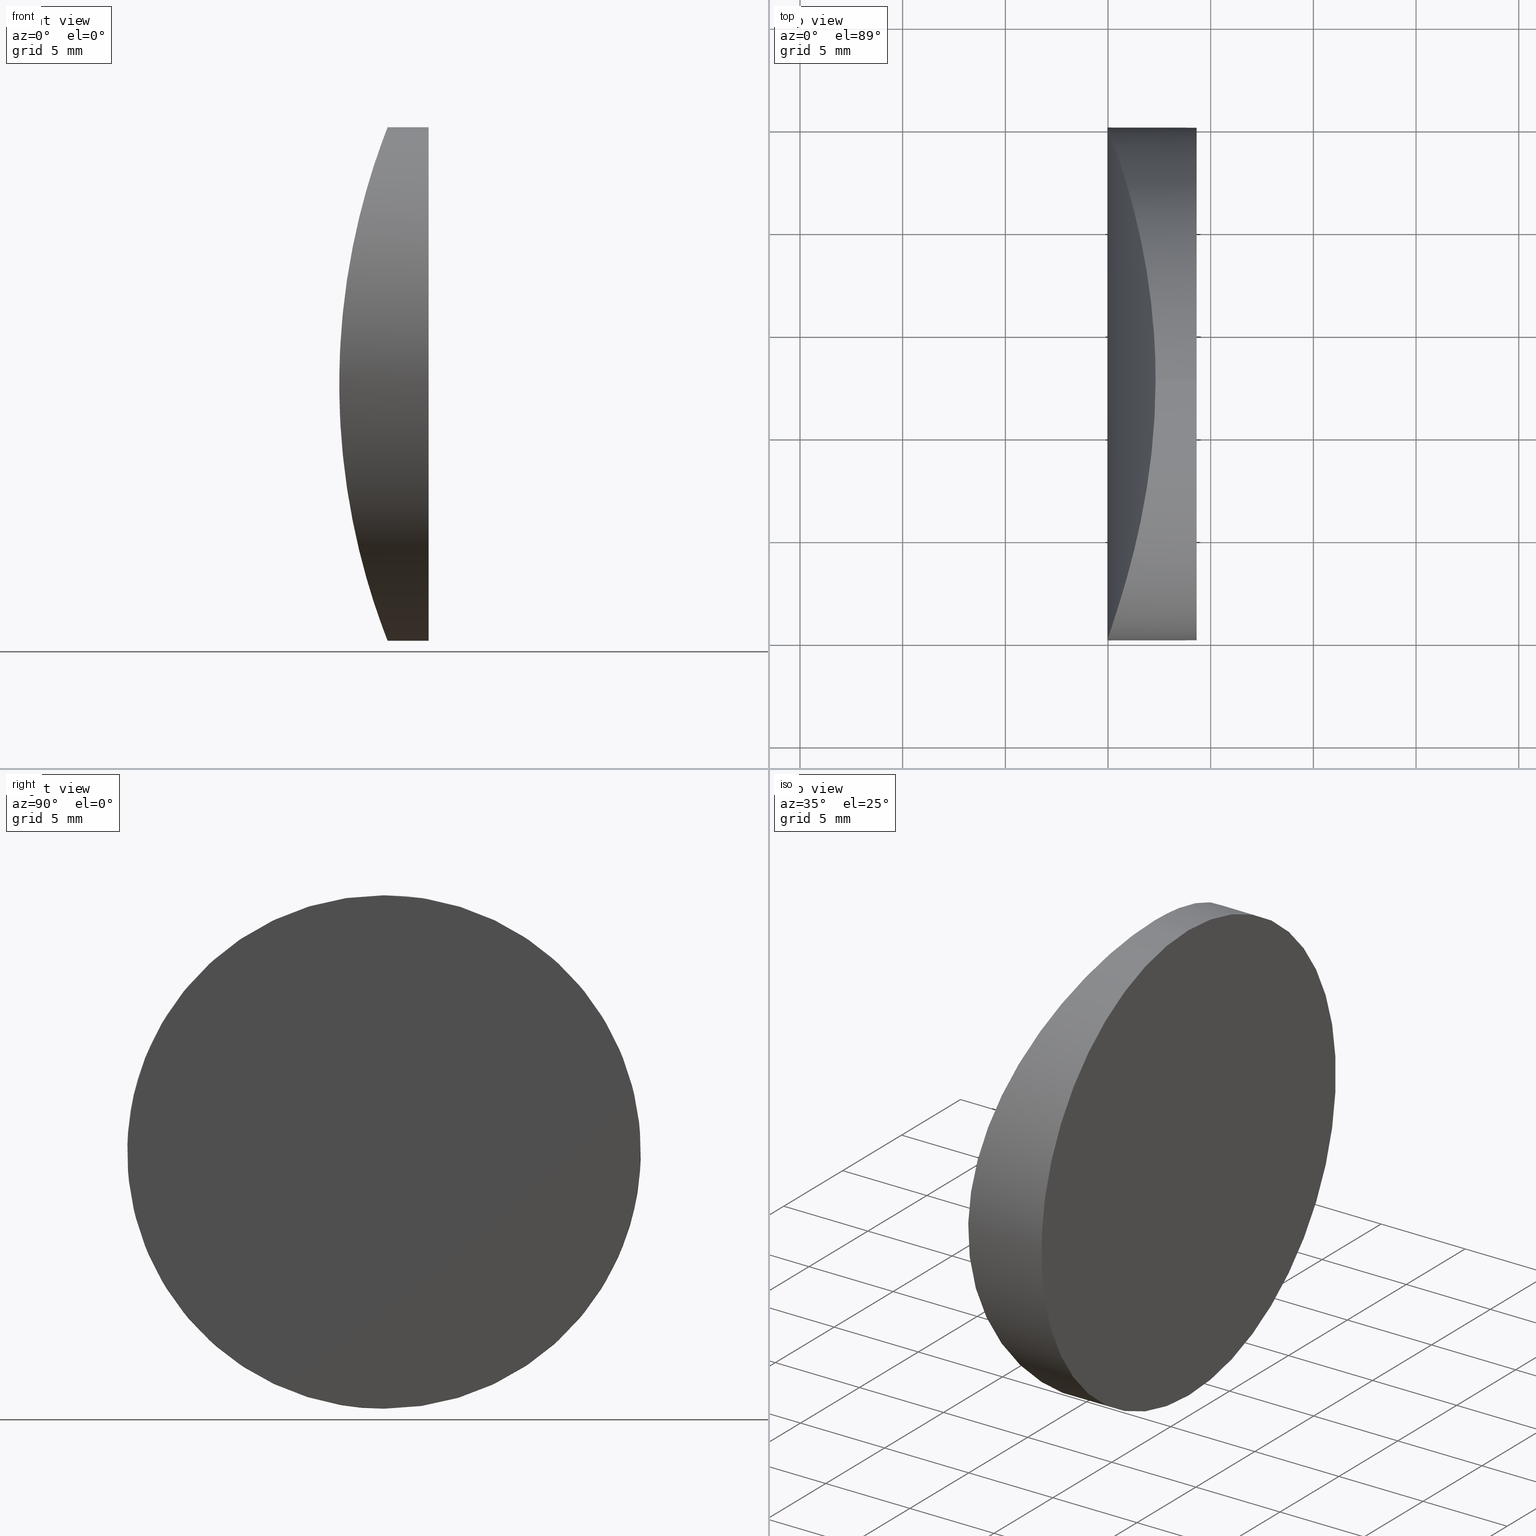
[diagram: canonical four-view strip — front | top / right | iso, engineering-drawing reading convention]
A machine part, canonical four-view strip (front | top / right | iso — engineering-drawing reading convention). The complete STEP part file that produces these views, byte-faithful:
ISO-10303-21;
HEADER;
FILE_DESCRIPTION (( 'STEP AP214' ),
    '1' );
FILE_NAME ('155291.STEP',
    '2019-06-26T05:49:38',
    ( 'user' ),
    ( '΢���й�' ),
    'SwSTEP 2.0',
    'SolidWorks 2016',
    '' );
FILE_SCHEMA (( 'AUTOMOTIVE_DESIGN' ));
ENDSEC;

DATA;
#1 = CARTESIAN_POINT ( 'NONE',  ( -27.68261862489430000, 12.50000000000000200, 12.50000000000001200 ) ) ;
#2 = CARTESIAN_POINT ( 'NONE',  ( -28.80275623099902300, 21.05008927480712400, -9.127373024748370900 ) ) ;
#3 =( GEOMETRIC_REPRESENTATION_CONTEXT ( 3 ) GLOBAL_UNCERTAINTY_ASSIGNED_CONTEXT ( ( #26 ) ) GLOBAL_UNIT_ASSIGNED_CONTEXT ( ( #47, #167, #173 ) ) REPRESENTATION_CONTEXT ( 'NONE', 'WORKASPACE' ) );
#4 = CARTESIAN_POINT ( 'NONE',  ( -27.93417209600296000, 16.54167172307995800, -11.83573902449227700 ) ) ;
#5 = AXIS2_PLACEMENT_3D ( 'NONE', #135, #40, #79 ) ;
#6 = FILL_AREA_STYLE_COLOUR ( '', #44 ) ;
#7 = EDGE_LOOP ( 'NONE', ( #151, #102, #87, #164 ) ) ;
#8 = CARTESIAN_POINT ( 'NONE',  ( -38.38479566514874400, 12.50000000000000200, 12.50000000000001600 ) ) ;
#9 = CARTESIAN_POINT ( 'NONE',  ( -30.00456624396605700, 0.08247634580604582000, 1.654664864097329200 ) ) ;
#10 = CARTESIAN_POINT ( 'NONE',  ( -28.80275360441916600, 3.949920913334837600, 9.127382542189256000 ) ) ;
#11 = AXIS2_PLACEMENT_3D ( 'NONE', #138, #18, #146 ) ;
#12 = CARTESIAN_POINT ( 'NONE',  ( -27.93417136693381400, 8.458334154526179200, 11.83574100932794200 ) ) ;
#13 = ORIENTED_EDGE ( 'NONE', *, *, #216, .T. ) ;
#14 = FACE_OUTER_BOUND ( 'NONE', #172, .T. ) ;
#15 = CARTESIAN_POINT ( 'NONE',  ( -27.80831729185340300, 9.630672460026927300, -12.17323180414692500 ) ) ;
#16 = DIRECTION ( 'NONE',  ( -2.775557561562890900E-016, 0.0000000000000000000, -1.000000000000000000 ) ) ;
#17 = DIRECTION ( 'NONE',  ( 1.000000000000000000, -0.0000000000000000000, -2.775557561562888400E-016 ) ) ;
#18 = DIRECTION ( 'NONE',  ( -0.0000000000000000000, -1.000000000000000000, -0.0000000000000000000 ) ) ;
#19 = CARTESIAN_POINT ( 'NONE',  ( -30.00459348050529900, 24.91757540255821000, 1.650794525485969300 ) ) ;
#20 = EDGE_CURVE ( 'NONE', #161, #36, #171, .T. ) ;
#21 = VERTEX_POINT ( 'NONE', #1 ) ;
#22 = CARTESIAN_POINT ( 'NONE',  ( -28.28518884856265800, 18.77773512722421500, -10.83985291728540700 ) ) ;
#23 = CARTESIAN_POINT ( 'NONE',  ( -29.25386027604025000, 22.65842477849977100, 7.295353636701395100 ) ) ;
#24 = CARTESIAN_POINT ( 'NONE',  ( -29.46281449669463000, 1.663707027548613200, 6.284672555825289400 ) ) ;
#25 = CARTESIAN_POINT ( 'NONE',  ( -29.74862158569902300, 24.19061978359414400, -4.443503981567981300 ) ) ;
#26 = UNCERTAINTY_MEASURE_WITH_UNIT (LENGTH_MEASURE( 1.000000000000000100E-005 ), #47, 'distance_accuracy_value', 'NONE');
#27 = CLOSED_SHELL ( 'NONE', ( #107, #118, #145, #110 ) ) ;
#28 = CARTESIAN_POINT ( 'NONE',  ( -29.03114223898581200, 3.103868318050590600, -8.253988237868890500 ) ) ;
#29 = CARTESIAN_POINT ( 'NONE',  ( -27.84499578560834400, 9.246668262674711900, 12.07624364830674000 ) ) ;
#30 = SHAPE_DEFINITION_REPRESENTATION ( #52, #32 ) ;
#31 = ORIENTED_EDGE ( 'NONE', *, *, #98, .F. ) ;
#32 = ADVANCED_BREP_SHAPE_REPRESENTATION ( '155291', ( #121, #5 ), #139 ) ;
#33 = CARTESIAN_POINT ( 'NONE',  ( -25.68479566514874100, 12.50000000000000000, -12.49999999999999800 ) ) ;
#34 = CARTESIAN_POINT ( 'NONE',  ( -29.75006470198216100, 24.19483706776008700, 4.432622641739887300 ) ) ;
#35 = ORIENTED_EDGE ( 'NONE', *, *, #60, .T. ) ;
#36 = VERTEX_POINT ( 'NONE', #147 ) ;
#37 = CARTESIAN_POINT ( 'NONE',  ( -29.88091643244263200, 24.57073443577632300, -3.273586096115768100 ) ) ;
#38 = CARTESIAN_POINT ( 'NONE',  ( -25.68479566514873700, 12.50000000000000000, 7.128962882560135300E-015 ) ) ;
#39 =( NAMED_UNIT ( * ) SI_UNIT ( $, .STERADIAN. ) SOLID_ANGLE_UNIT ( ) );
#40 = DIRECTION ( 'NONE',  ( 0.0000000000000000000, 0.0000000000000000000, 1.000000000000000000 ) ) ;
#41 = APPLICATION_CONTEXT ( 'automotive_design' ) ;
#42 = CARTESIAN_POINT ( 'NONE',  ( -29.03050791899421100, 3.093258085831388700, 8.271339939754817300 ) ) ;
#43 = CARTESIAN_POINT ( 'NONE',  ( -28.28518723345344900, 6.222273334738162000, 10.83985772180482200 ) ) ;
#44 = COLOUR_RGB ( '',1.000000000000000000, 1.000000000000000000, 1.000000000000000000 ) ;
#45 = PRODUCT ( '155291', '155291', '', ( #148 ) ) ;
#46 = ORIENTED_EDGE ( 'NONE', *, *, #160, .F. ) ;
#47 =( LENGTH_UNIT ( ) NAMED_UNIT ( * ) SI_UNIT ( .MILLI., .METRE. ) );
#48 = DIRECTION ( 'NONE',  ( -2.775557561562890400E-016, 0.0000000000000000000, -1.000000000000000000 ) ) ;
#49 =( GEOMETRIC_REPRESENTATION_CONTEXT ( 3 ) GLOBAL_UNCERTAINTY_ASSIGNED_CONTEXT ( ( #97 ) ) GLOBAL_UNIT_ASSIGNED_CONTEXT ( ( #153, #133, #39 ) ) REPRESENTATION_CONTEXT ( 'NONE', 'WORKASPACE' ) );
#50 = CARTESIAN_POINT ( 'NONE',  ( -29.18030689710218400, 2.586894198857435000, -7.625348896330256000 ) ) ;
#51 = CARTESIAN_POINT ( 'NONE',  ( -29.03113929885849100, 21.89612123517792600, 8.254000096522585000 ) ) ;
#52 = PRODUCT_DEFINITION_SHAPE ( 'NONE', 'NONE',  #224 ) ;
#53 = PRODUCT_RELATED_PRODUCT_CATEGORY ( 'part', '', ( #45 ) ) ;
#54 = CARTESIAN_POINT ( 'NONE',  ( -29.59004818840314500, 23.72255856452423100, 5.565393909500506300 ) ) ;
#55 = CARTESIAN_POINT ( 'NONE',  ( -29.88091413361193800, 0.4292720795931539400, 3.273610026519647500 ) ) ;
#56 = CARTESIAN_POINT ( 'NONE',  ( -28.15417720882170400, 6.933359156929364000, -11.22152700402516400 ) ) ;
#57 = FILL_AREA_STYLE ('',( #6 ) ) ;
#58 = CARTESIAN_POINT ( 'NONE',  ( -27.84499626010628900, 15.75333649954086300, -12.07624238717444600 ) ) ;
#59 = CARTESIAN_POINT ( 'NONE',  ( -27.68261862489430000, 12.50000000000000200, 12.50000000000001200 ) ) ;
#60 = EDGE_CURVE ( 'NONE', #21, #36, #61, .T. ) ;
#61 = LINE ( 'NONE', #8, #124 ) ;
#62 = DIRECTION ( 'NONE',  ( 1.000000000000000000, -2.465190328815661300E-032, -2.510324564891254900E-016 ) ) ;
#63 = CARTESIAN_POINT ( 'NONE',  ( -29.91725283075606600, 24.67312654712153700, -2.869789699021069000 ) ) ;
#64 = CARTESIAN_POINT ( 'NONE',  ( -29.59005126638303600, 1.277432145709698000, -5.565375384383452600 ) ) ;
#65 = CARTESIAN_POINT ( 'NONE',  ( -28.15417591719125300, 18.06663318251941100, 11.22153071805902900 ) ) ;
#66 = CARTESIAN_POINT ( 'NONE',  ( -38.38479566514874400, 12.50000000000000000, -12.49999999999999500 ) ) ;
#67 = CARTESIAN_POINT ( 'NONE',  ( -27.93628897816292400, 8.441590494950627700, -11.82996471325024700 ) ) ;
#68 = DIRECTION ( 'NONE',  ( 1.000000000000000000, -2.465190328815661300E-032, -2.510324564891254900E-016 ) ) ;
#69 = FACE_OUTER_BOUND ( 'NONE', #111, .T. ) ;
#70 = CARTESIAN_POINT ( 'NONE',  ( -29.88280629605897300, 24.57609142824464100, 3.253925222309598900 ) ) ;
#71 = DIRECTION ( 'NONE',  ( -2.775557561562890400E-016, 0.0000000000000000000, -1.000000000000000000 ) ) ;
#72 = CYLINDRICAL_SURFACE ( 'NONE', #74, 12.50000000000000500 ) ;
#73 = CARTESIAN_POINT ( 'NONE',  ( -28.95537211803211600, 3.375957713350600500, -8.553645965190963100 ) ) ;
#74 = AXIS2_PLACEMENT_3D ( 'NONE', #81, #17, #180 ) ;
#75 = PRESENTATION_LAYER_ASSIGNMENT (  '', '', ( #181 ) ) ;
#76 = CARTESIAN_POINT ( 'NONE',  ( -29.46349294341856200, 1.661731452363045300, -6.280529546352103600 ) ) ;
#77 = SURFACE_STYLE_USAGE ( .BOTH. , #219 ) ;
#78 = CARTESIAN_POINT ( 'NONE',  ( -29.74861882287756700, 0.8093882711108719700, 4.443525113256235700 ) ) ;
#79 = DIRECTION ( 'NONE',  ( 1.000000000000000000, 0.0000000000000000000, 0.0000000000000000000 ) ) ;
#80 = CARTESIAN_POINT ( 'NONE',  ( -28.15346121212862200, 6.936902819512595500, 11.22364447733905400 ) ) ;
#81 = CARTESIAN_POINT ( 'NONE',  ( -38.38479566514874400, 12.50000000000000000, 1.065392098574500300E-014 ) ) ;
#82 = CARTESIAN_POINT ( 'NONE',  ( -27.98696864466325400, 8.057987109682365200, -11.69117449731651300 ) ) ;
#83 = CARTESIAN_POINT ( 'NONE',  ( -28.72759336298537400, 4.232450204764711000, -9.410082261536354400 ) ) ;
#84 = CARTESIAN_POINT ( 'NONE',  ( -27.98696778596361800, 16.94200660137109100, 11.69117686610902700 ) ) ;
#85 = CARTESIAN_POINT ( 'NONE',  ( -28.57490508175847300, 20.14279043702545400, 9.925178605276515900 ) ) ;
#86 = CARTESIAN_POINT ( 'NONE',  ( -29.58934629421969800, 23.72040157173630700, -5.569009140239433700 ) ) ;
#87 = ORIENTED_EDGE ( 'NONE', *, *, #160, .T. ) ;
#88 = CARTESIAN_POINT ( 'NONE',  ( -30.00459480313940800, 0.08242095384357188400, -1.650767714123980500 ) ) ;
#89 = PRESENTATION_STYLE_ASSIGNMENT (( #162 ) ) ;
#90 = MECHANICAL_DESIGN_GEOMETRIC_PRESENTATION_REPRESENTATION (  '', ( #94 ), #49 ) ;
#91 = CARTESIAN_POINT ( 'NONE',  ( -29.91725074705607300, 0.3268793150756996200, 2.869814483377699100 ) ) ;
#92 = CARTESIAN_POINT ( 'NONE',  ( -28.72649411179952100, 4.249564700920617000, 9.399239376524576500 ) ) ;
#93 = VECTOR ( 'NONE', #205, 1000.000000000000000 ) ;
#94 = STYLED_ITEM ( 'NONE', ( #143 ), #32 ) ;
#95 = CARTESIAN_POINT ( 'NONE',  ( -29.79663257316942500, 24.32956587615740300, -4.059601819066883400 ) ) ;
#96 = CARTESIAN_POINT ( 'NONE',  ( -27.68261862489430000, 12.50000000000000200, 12.50000000000001200 ) ) ;
#97 = UNCERTAINTY_MEASURE_WITH_UNIT (LENGTH_MEASURE( 1.000000000000000100E-005 ), #153, 'distance_accuracy_value', 'NONE');
#98 = EDGE_CURVE ( 'NONE', #21, #142, #154, .T. ) ;
#99 = CARTESIAN_POINT ( 'NONE',  ( -30.03479940413747300, -1.028670582729603600E-005, -0.8329356729202913600 ) ) ;
#100 = CARTESIAN_POINT ( 'NONE',  ( -29.18116831342736000, 22.42245623404778600, -7.646385978183769100 ) ) ;
#101 = DIRECTION ( 'NONE',  ( 1.000000000000000000, 0.0000000000000000000, -2.775557561562890900E-016 ) ) ;
#102 = ORIENTED_EDGE ( 'NONE', *, *, #98, .T. ) ;
#103 = CARTESIAN_POINT ( 'NONE',  ( -28.28587312272549100, 18.78172564395517000, 10.83795824613669900 ) ) ;
#104 = APPLICATION_CONTEXT ( 'automotive_design' ) ;
#105 = PRESENTATION_LAYER_ASSIGNMENT (  '', '', ( #94 ) ) ;
#106 = CARTESIAN_POINT ( 'NONE',  ( -27.80712544602119600, 9.644539751483302200, 12.17637246660203200 ) ) ;
#107 = ADVANCED_FACE ( 'NONE', ( #207 ), #185, .T. ) ;
#108 = CARTESIAN_POINT ( 'NONE',  ( -27.98546607127927600, 8.068739912112521400, 11.69534075740456400 ) ) ;
#109 = DIRECTION ( 'NONE',  ( 1.000000000000000000, -0.0000000000000000000, -2.775557561562888400E-016 ) ) ;
#110 = ADVANCED_FACE ( 'NONE', ( #129 ), #72, .T. ) ;
#111 = EDGE_LOOP ( 'NONE', ( #183, #31 ) ) ;
#112 = SURFACE_STYLE_FILL_AREA ( #57 ) ;
#113 = DIRECTION ( 'NONE',  ( 0.0000000000000000000, 0.0000000000000000000, -1.000000000000000000 ) ) ;
#114 = CARTESIAN_POINT ( 'NONE',  ( -29.79865622830953600, 24.33540466519128700, 4.042673613696070600 ) ) ;
#115 = CARTESIAN_POINT ( 'NONE',  ( -27.80712581113589400, 15.35546444158051000, -12.17637150400243600 ) ) ;
#116 = CARTESIAN_POINT ( 'NONE',  ( -28.28587474115270000, 6.218265877492669300, -10.83795343299489400 ) ) ;
#117 = AXIS2_PLACEMENT_3D ( 'NONE', #188, #128, #113 ) ;
#118 = ADVANCED_FACE ( 'NONE', ( #69 ), #178, .T. ) ;
#119 = CARTESIAN_POINT ( 'NONE',  ( -29.46348978808604400, 23.33825871744276300, 6.280546364263013700 ) ) ;
#120 = CIRCLE ( 'NONE', #150, 12.50000000000000500 ) ;
#121 = MANIFOLD_SOLID_BREP ( '�г�-����8', #27 ) ;
#122 = CARTESIAN_POINT ( 'NONE',  ( -28.72649661931204100, 20.75044535852663700, -9.399230570610534100 ) ) ;
#123 = COLOUR_RGB ( '',1.000000000000000000, 1.000000000000000000, 1.000000000000000000 ) ;
#124 = VECTOR ( 'NONE', #109, 1000.000000000000000 ) ;
#125 = CARTESIAN_POINT ( 'NONE',  ( -29.88280856626463200, 0.4239021406810782300, -3.253901421624838100 ) ) ;
#126 = CARTESIAN_POINT ( 'NONE',  ( -29.91837780333349500, 0.3237125640030355000, -2.855844906392303300 ) ) ;
#127 = CARTESIAN_POINT ( 'NONE',  ( -28.57539988421563800, 4.877952719775036500, 9.915633047845229700 ) ) ;
#128 = DIRECTION ( 'NONE',  ( 1.000000000000000000, -0.0000000000000000000, -2.775557561562888400E-016 ) ) ;
#129 = FACE_OUTER_BOUND ( 'NONE', #7, .T. ) ;
#130 = CARTESIAN_POINT ( 'NONE',  ( -27.71512721602632100, 14.15083397525024200, -12.41754999621956300 ) ) ;
#131 = CARTESIAN_POINT ( 'NONE',  ( -27.71512711847934400, 10.84916847754178400, 12.41755024107369800 ) ) ;
#132 = CARTESIAN_POINT ( 'NONE',  ( -29.46281766168499400, 23.33630283217453500, -6.284655692507367800 ) ) ;
#133 =( NAMED_UNIT ( * ) PLANE_ANGLE_UNIT ( ) SI_UNIT ( $, .RADIAN. ) );
#134 = CARTESIAN_POINT ( 'NONE',  ( -29.79662994263382500, 0.6704417132909157300, 4.059623858878035600 ) ) ;
#135 = CARTESIAN_POINT ( 'NONE',  ( 0.0000000000000000000, 0.0000000000000000000, 0.0000000000000000000 ) ) ;
#136 = CARTESIAN_POINT ( 'NONE',  ( -29.18030379751040800, 22.41309531547570100, 7.625362491439354100 ) ) ;
#137 = APPLICATION_PROTOCOL_DEFINITION ( 'draft international standard', 'automotive_design', 1998, #104 ) ;
#138 = CARTESIAN_POINT ( 'NONE',  ( 4.355204334851265500, 25.00000000000000000, 4.286263797015675000E-017 ) ) ;
#139 =( GEOMETRIC_REPRESENTATION_CONTEXT ( 3 ) GLOBAL_UNCERTAINTY_ASSIGNED_CONTEXT ( ( #157 ) ) GLOBAL_UNIT_ASSIGNED_CONTEXT ( ( #193, #199, #221 ) ) REPRESENTATION_CONTEXT ( 'NONE', 'WORKASPACE' ) );
#140 = CARTESIAN_POINT ( 'NONE',  ( -29.25386341390898400, 2.341564844001974500, -7.295339217932771600 ) ) ;
#141 = AXIS2_PLACEMENT_3D ( 'NONE', #222, #101, #16 ) ;
#142 = VERTEX_POINT ( 'NONE', #149 ) ;
#143 = PRESENTATION_STYLE_ASSIGNMENT (( #77 ) ) ;
#144 = MECHANICAL_DESIGN_GEOMETRIC_PRESENTATION_REPRESENTATION (  '', ( #181 ), #3 ) ;
#145 = ADVANCED_FACE ( 'NONE', ( #14 ), #159, .T. ) ;
#146 = DIRECTION ( 'NONE',  ( 0.0000000000000000000, 0.0000000000000000000, -1.000000000000000000 ) ) ;
#147 = CARTESIAN_POINT ( 'NONE',  ( -25.68479566514873400, 12.50000000000000200, 12.50000000000001200 ) ) ;
#148 = PRODUCT_CONTEXT ( 'NONE', #41, 'mechanical' ) ;
#149 = CARTESIAN_POINT ( 'NONE',  ( -27.68261862489430300, 12.50000000000000000, -12.49999999999999800 ) ) ;
#150 = AXIS2_PLACEMENT_3D ( 'NONE', #189, #62, #48 ) ;
#151 = ORIENTED_EDGE ( 'NONE', *, *, #60, .F. ) ;
#152 = CARTESIAN_POINT ( 'NONE',  ( -30.03479265193081500, 24.99999171003484500, -0.8332159410108661600 ) ) ;
#153 =( LENGTH_UNIT ( ) NAMED_UNIT ( * ) SI_UNIT ( .MILLI., .METRE. ) );
#154 = B_SPLINE_CURVE_WITH_KNOTS ( 'NONE', 3,
 ( #96, #179, #131, #106, #29, #12, #108, #80, #43, #200, #127, #92, #10, #42, #202, #24, #211, #78, #134, #55, #91, #9, #168, #99, #88, #126, #125, #213, #165, #64, #76, #140, #50, #28, #73, #83, #184, #116, #56, #82, #67, #191, #15, #170, #190, #176 ),
 .UNSPECIFIED., .F., .F.,
 ( 4, 2, 2, 2, 2, 2, 2, 2, 2, 2, 2, 2, 2, 2, 2, 2, 2, 2, 2, 2, 2, 2, 4 ),
 ( 0.01969840129271694900, 0.02216071677144734700, 0.02339187451081254500, 0.02462303225017774300, 0.02708534772890813800, 0.02831650546827333600, 0.02954766320763853700, 0.03200997868636894200, 0.03447229416509934400, 0.03570345190446454200, 0.03693460964382974700, 0.03939692512256014900, 0.04185924060129055100, 0.04309039834065574900, 0.04432155608002094600, 0.04678387155875134800, 0.04801502929811654600, 0.04924618703748175100, 0.05170850251621214600, 0.05417081799494255500, 0.05540197573430776000, 0.05663313347367295000, 0.05909544895240335900 ),
 .UNSPECIFIED. ) ;
#155 = CARTESIAN_POINT ( 'NONE',  ( -28.15346250653735200, 18.06310485941780900, -11.22364075600437200 ) ) ;
#156 = CARTESIAN_POINT ( 'NONE',  ( -27.84699994362514300, 15.77293558321610900, 12.07090075405611200 ) ) ;
#157 = UNCERTAINTY_MEASURE_WITH_UNIT (LENGTH_MEASURE( 1.000000000000000100E-005 ), #193, 'distance_accuracy_value', 'NONE');
#158 = CARTESIAN_POINT ( 'NONE',  ( -27.71514577670293300, 14.15448565710782500, 12.41753306807851800 ) ) ;
#159 = PLANE ( 'NONE',  #141 ) ;
#160 = EDGE_CURVE ( 'NONE', #142, #161, #166, .T. ) ;
#161 = VERTEX_POINT ( 'NONE', #33 ) ;
#162 = SURFACE_STYLE_USAGE ( .BOTH. , #175 ) ;
#163 = PRODUCT_DEFINITION_FORMATION_WITH_SPECIFIED_SOURCE ( '�κ�', '', #45, .NOT_KNOWN. ) ;
#164 = ORIENTED_EDGE ( 'NONE', *, *, #216, .F. ) ;
#165 = CARTESIAN_POINT ( 'NONE',  ( -29.75006748239969300, 0.8051548286722500800, -4.432601326758915100 ) ) ;
#166 = LINE ( 'NONE', #66, #93 ) ;
#167 =( NAMED_UNIT ( * ) PLANE_ANGLE_UNIT ( ) SI_UNIT ( $, .RADIAN. ) );
#168 = CARTESIAN_POINT ( 'NONE',  ( -30.03479192546715400, 1.028861197471729100E-005, 0.8332443928213482100 ) ) ;
#169 = FILL_AREA_STYLE_COLOUR ( '', #123 ) ;
#170 = CARTESIAN_POINT ( 'NONE',  ( -27.71514587435705600, 10.84551187920120600, -12.41753282317805200 ) ) ;
#171 = CIRCLE ( 'NONE', #204, 12.50000000000000500 ) ;
#172 = EDGE_LOOP ( 'NONE', ( #223, #13 ) ) ;
#173 =( NAMED_UNIT ( * ) SI_UNIT ( $, .STERADIAN. ) SOLID_ANGLE_UNIT ( ) );
#174 = FILL_AREA_STYLE ('',( #169 ) ) ;
#175 = SURFACE_SIDE_STYLE ('',( #212 ) ) ;
#176 = CARTESIAN_POINT ( 'NONE',  ( -27.68261862489430300, 12.50000000000000000, -12.49999999999999800 ) ) ;
#177 = CARTESIAN_POINT ( 'NONE',  ( -28.72759085048593200, 20.76753973086917100, 9.410090997761297900 ) ) ;
#178 = CYLINDRICAL_SURFACE ( 'NONE', #11, 34.39000000000000100 ) ;
#179 = CARTESIAN_POINT ( 'NONE',  ( -27.68261862489430300, 11.66684078157210200, 12.50000000000001600 ) ) ;
#180 = DIRECTION ( 'NONE',  ( 0.0000000000000000000, 0.0000000000000000000, -1.000000000000000000 ) ) ;
#181 = STYLED_ITEM ( 'NONE', ( #89 ), #121 ) ;
#182 = APPLICATION_PROTOCOL_DEFINITION ( 'draft international standard', 'automotive_design', 1998, #41 ) ;
#183 = ORIENTED_EDGE ( 'NONE', *, *, #217, .F. ) ;
#184 = CARTESIAN_POINT ( 'NONE',  ( -28.57490736433306100, 4.857199671541524200, -9.925171098825131800 ) ) ;
#185 = CYLINDRICAL_SURFACE ( 'NONE', #117, 12.50000000000000500 ) ;
#186 = CARTESIAN_POINT ( 'NONE',  ( -28.95536927524882000, 21.62403190566146100, 8.553657009220334100 ) ) ;
#187 = CARTESIAN_POINT ( 'NONE',  ( -28.50036865944451500, 19.79217214370520800, -10.16069967204825300 ) ) ;
#188 = CARTESIAN_POINT ( 'NONE',  ( -38.38479566514874400, 12.50000000000000000, 1.065392098574500300E-014 ) ) ;
#189 = CARTESIAN_POINT ( 'NONE',  ( -25.68479566514873700, 12.50000000000000000, 7.128962882560135300E-015 ) ) ;
#190 = CARTESIAN_POINT ( 'NONE',  ( -27.68261862489431000, 11.66683953214025300, -12.50000000000000400 ) ) ;
#191 = CARTESIAN_POINT ( 'NONE',  ( -27.84700042486892000, 9.227059622727590900, -12.07089947411712800 ) ) ;
#192 = CARTESIAN_POINT ( 'NONE',  ( -27.80831692151008700, 15.36932330635395900, 12.17323278078645500 ) ) ;
#193 =( LENGTH_UNIT ( ) NAMED_UNIT ( * ) SI_UNIT ( .MILLI., .METRE. ) );
#194 = CARTESIAN_POINT ( 'NONE',  ( -27.68261862489429600, 13.33316046785104100, -12.50000000000000000 ) ) ;
#195 = CARTESIAN_POINT ( 'NONE',  ( -30.03479867791683900, 25.00000828872761000, 0.8329671884507658900 ) ) ;
#196 = ORIENTED_EDGE ( 'NONE', *, *, #20, .F. ) ;
#197 = PRODUCT_DEFINITION_CONTEXT ( 'detailed design', #104, 'design' ) ;
#198 = CARTESIAN_POINT ( 'NONE',  ( -27.98546693565007400, 16.93126643238136400, -11.69533837387487700 ) ) ;
#199 =( NAMED_UNIT ( * ) PLANE_ANGLE_UNIT ( ) SI_UNIT ( $, .RADIAN. ) );
#200 = CARTESIAN_POINT ( 'NONE',  ( -28.50036656281087100, 5.207837316737005100, 10.16070643602129500 ) ) ;
#201 = CARTESIAN_POINT ( 'NONE',  ( -27.68261862489429600, 13.33315921841919200, 12.50000000000000900 ) ) ;
#202 = CARTESIAN_POINT ( 'NONE',  ( -29.18116514291281800, 2.577554462577682900, 7.646399746000132500 ) ) ;
#203 = CARTESIAN_POINT ( 'NONE',  ( -28.57540213496953600, 20.12205700999065900, -9.915625591458432800 ) ) ;
#204 = AXIS2_PLACEMENT_3D ( 'NONE', #38, #68, #71 ) ;
#205 = DIRECTION ( 'NONE',  ( 1.000000000000000000, -0.0000000000000000000, -2.775557561562888400E-016 ) ) ;
#206 = CARTESIAN_POINT ( 'NONE',  ( -29.91837574945374800, 24.67628165889647100, 2.855869451519109000 ) ) ;
#207 = FACE_OUTER_BOUND ( 'NONE', #210, .T. ) ;
#208 = CARTESIAN_POINT ( 'NONE',  ( -27.93628825430144500, 16.55840369781795500, 11.82996668514717500 ) ) ;
#209 = CARTESIAN_POINT ( 'NONE',  ( -27.68261862489430300, 12.50000000000000000, -12.49999999999999800 ) ) ;
#210 = EDGE_LOOP ( 'NONE', ( #215, #35, #196, #46 ) ) ;
#211 = CARTESIAN_POINT ( 'NONE',  ( -29.58934322116751000, 1.279607704237071500, 5.569027638672555000 ) ) ;
#212 = SURFACE_STYLE_FILL_AREA ( #174 ) ;
#213 = CARTESIAN_POINT ( 'NONE',  ( -29.79865887969310000, 0.6645876891138500200, -4.042651283603834000 ) ) ;
#214 = B_SPLINE_CURVE_WITH_KNOTS ( 'NONE', 3,
 ( #209, #194, #130, #115, #58, #4, #198, #155, #22, #187, #203, #122, #2, #218, #100, #132, #86, #25, #95, #37, #63, #220, #152, #195, #19, #206, #70, #114, #34, #54, #119, #23, #136, #51, #186, #177, #85, #103, #65, #84, #208, #156, #192, #158, #201, #59 ),
 .UNSPECIFIED., .F., .F.,
 ( 4, 2, 2, 2, 2, 2, 2, 2, 2, 2, 2, 2, 2, 2, 2, 2, 2, 2, 2, 2, 2, 2, 4 ),
 ( -0.01969864636655765600, -0.01723633088785299000, -0.01600517314850066100, -0.01477401540914833000, -0.01231169993044366500, -0.01108054219109133300, -0.009849384451738997900, -0.007387068973034342400, -0.004924753494329683600, -0.003693595754977352400, -0.002462438015625022900, -1.225369203605719500E-007, 0.002462192941784305300, 0.003693350681136631200, 0.004924508420488957200, 0.007386823899193623000, 0.008617981638545955900, 0.009849139377898288900, 0.01231145485660295800, 0.01477377033530761700, 0.01600492807465995700, 0.01723608581401228300, 0.01969840129271694900 ),
 .UNSPECIFIED. ) ;
#215 = ORIENTED_EDGE ( 'NONE', *, *, #217, .T. ) ;
#216 = EDGE_CURVE ( 'NONE', #36, #161, #120, .T. ) ;
#217 = EDGE_CURVE ( 'NONE', #142, #21, #214, .T. ) ;
#218 = CARTESIAN_POINT ( 'NONE',  ( -29.03051086291826600, 21.90675236993804000, -8.271328164869839100 ) ) ;
#219 = SURFACE_SIDE_STYLE ('',( #112 ) ) ;
#220 = CARTESIAN_POINT ( 'NONE',  ( -30.00456757602506000, 24.91752732321654700, -1.654637897710872000 ) ) ;
#221 =( NAMED_UNIT ( * ) SI_UNIT ( $, .STERADIAN. ) SOLID_ANGLE_UNIT ( ) );
#222 = CARTESIAN_POINT ( 'NONE',  ( -25.68479566514874100, 25.00000000000000000, -12.50000000000000400 ) ) ;
#223 = ORIENTED_EDGE ( 'NONE', *, *, #20, .T. ) ;
#224 = PRODUCT_DEFINITION ( 'δ֪', '', #163, #197 ) ;
ENDSEC;
END-ISO-10303-21;
